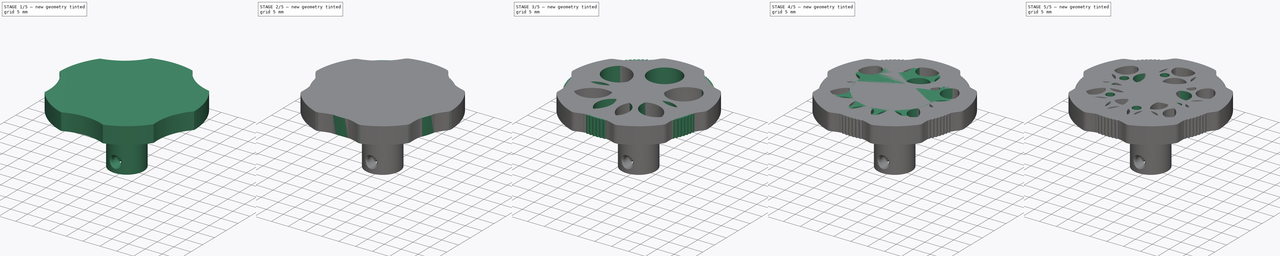
[diagram: build sequence overview — one tinted view per stage of 5, left to right]
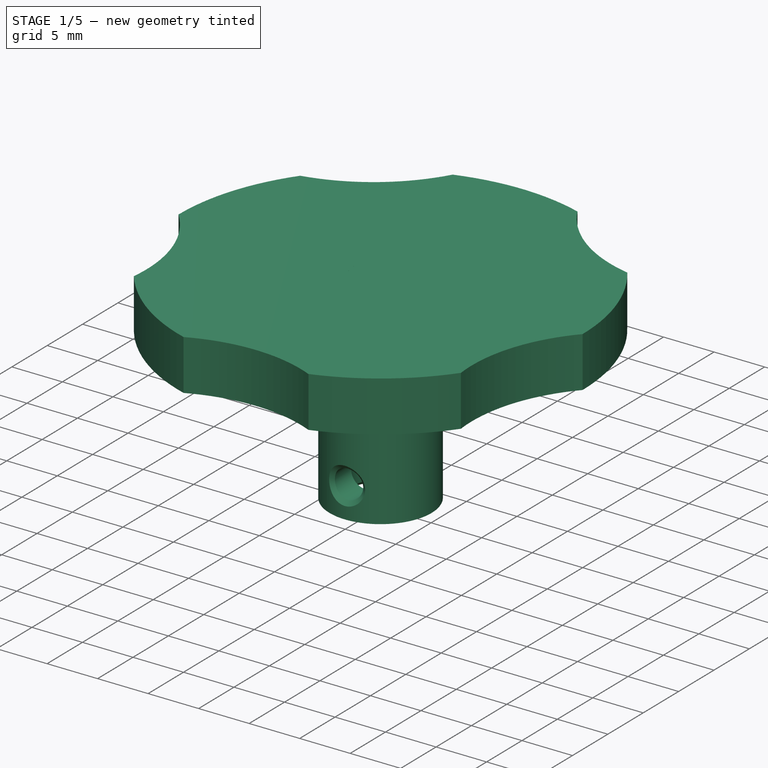
[diagram: stage 1 of 5 — iso view after this stage's code; geometry added in this stage tinted green]
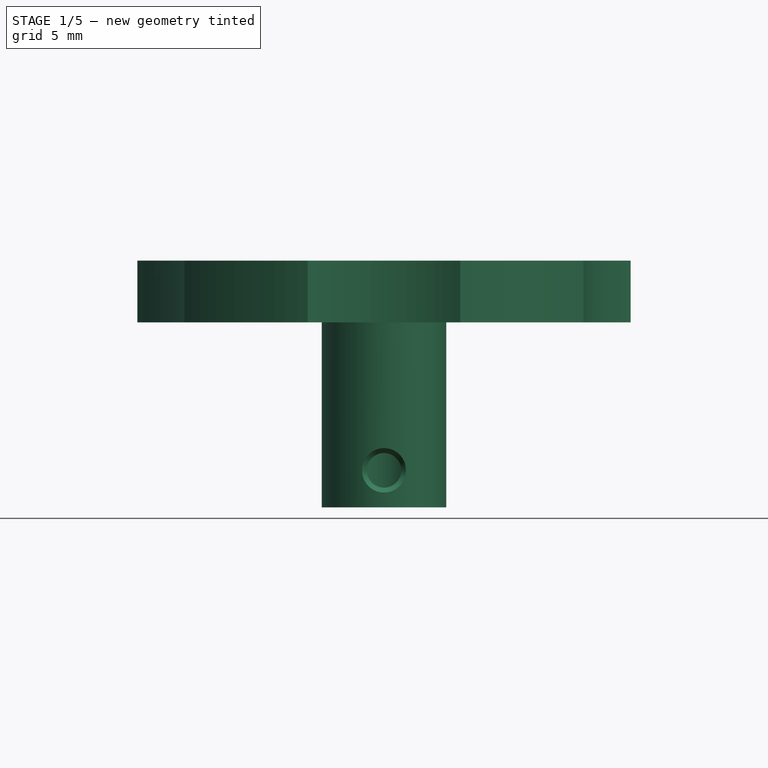
[diagram: stage 1 of 5 — front view after this stage's code; geometry added in this stage tinted green]
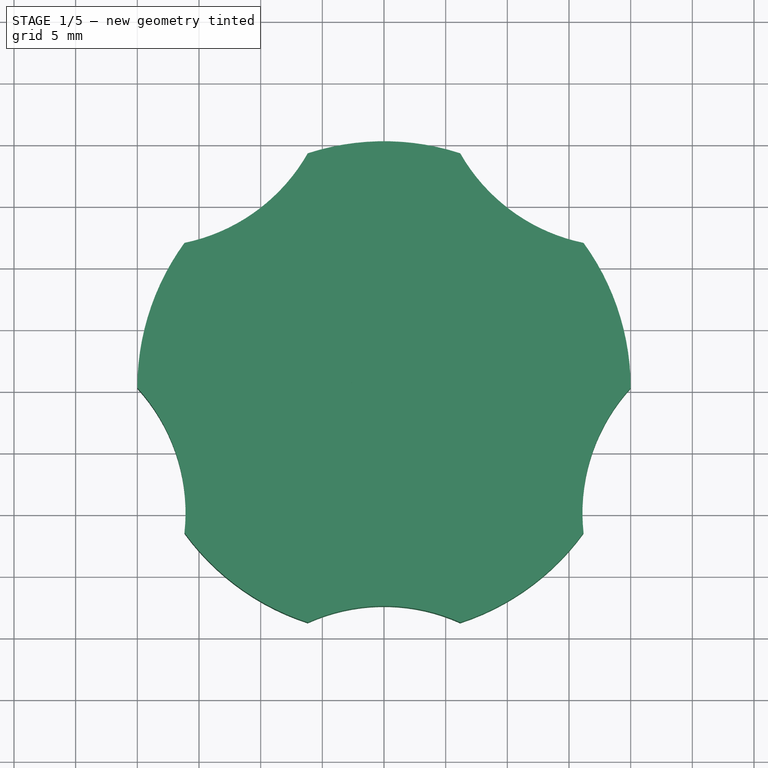
[diagram: stage 1 of 5 — top view after this stage's code; geometry added in this stage tinted green]
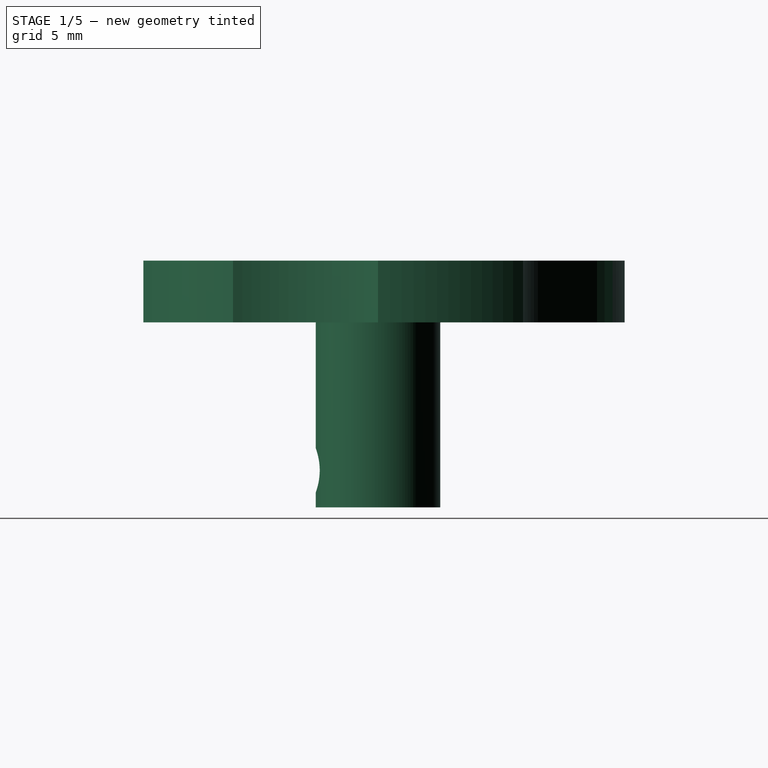
[diagram: stage 1 of 5 — right view after this stage's code; geometry added in this stage tinted green]
FCSTD DOCUMENT  (FreeCAD 0.16R6712 (Git))
Label: ExtruderKnob
License: All rights reserved
LicenseURL: http://en.wikipedia.org/wiki/All_rights_reserved
objects: Sketcher::SketchObject×11, PartDesign::Pad×6, PartDesign::PolarPattern×6, App::DocumentObjectGroup×6, PartDesign::Pocket×5, Part::FeaturePython×5, Part::MultiFuse×3, PartDesign::Chamfer×1, PartDesign::Fillet×1
note: 49 computed .brp shape members not serialized (recipe doc carries the construction recipe); baked Part::Feature solids carry a one-line shape summary decoded from their .brp

FEATURE [Sketcher::SketchObject] Sketch  label="StalkBase"
  sketch-geometry (5):
    g0: ArcOfCircle CenterX=0 CenterY=0 CenterZ=0 NormalX=0 NormalY=0 NormalZ=1 Radius=2.65 StartAngle=5.33678 EndAngle=10.3712
    g1: LineSegment StartX=-1.54919 StartY=-2.15 StartZ=0 EndX=1.54919 EndY=-2.15 EndZ=0
    g2: ArcOfCircle [constr] CenterX=0 CenterY=0 CenterZ=0 NormalX=0 NormalY=0 NormalZ=1 Radius=2.65 StartAngle=4.088 EndAngle=5.33678
    g3: GeomPoint [constr] X=0 Y=-2.65 Z=0
    g4: Circle CenterX=0 CenterY=0 CenterZ=0 NormalX=0 NormalY=0 NormalZ=1 Radius=5.05
  constraints (14):
    c: Coincident(g0,g-1)
    c: Radius(g0) = 2.65
    c: Symmetric(g0,g0,g-2)
    c: Coincident(g1,g0)
    c: Coincident(g1,g0)
    c: Horizontal(g1)
    c: Coincident(g2,g-1)
    c: Coincident(g2,g0)
    c: Coincident(g2,g0)
    c: PointOnObject(g3,g2)
    c: PointOnObject(g3,g-2)
    c: DistanceY(g3,g0) = 0.5
    c: Coincident(g4,g-1)
    c: Radius(g4) = 5.05
FEATURE [PartDesign::Pad] Pad
  Length = 20
  Length2 = 100
  Sketch = -> Sketch
  Type = 0
FEATURE [Sketcher::SketchObject] Sketch001  label="StalkHole"
  ExternalGeometry = -> [Pad]
  Placement = pos=(0,-2.15,0) rot=(0,0.707107,0.707107;3.14159rad)
  Support = -> Pad [Face3]
  sketch-geometry (3):
    g0: LineSegment [constr] StartX=-1.54919 StartY=20 StartZ=0 EndX=-1.54919 EndY=0 EndZ=0
    g1: LineSegment [constr] StartX=1.54919 StartY=20 StartZ=0 EndX=1.54919 EndY=0 EndZ=0
    g2: Circle CenterX=0 CenterY=3 CenterZ=0 NormalX=0 NormalY=0 NormalZ=1 Radius=1.4
  constraints (9):
    c: Coincident(g0,g-3)
    c: PointOnObject(g0,g-1)
    c: Vertical(g0)
    c: Coincident(g1,g-3)
    c: PointOnObject(g1,g-1)
    c: Vertical(g1)
    c: PointOnObject(g2,g-2)
    c: Radius(g2) = 1.4
    c: DistanceY(g-1,g2) = 3
FEATURE [PartDesign::Pocket] Pocket
  Length = 5
  Sketch = -> Sketch001
  Type = 2
FEATURE [PartDesign::Chamfer] Chamfer001  label="StalkChamf"
  Base = -> Pocket [Edge4,Edge5,Edge7,Edge6]
  Size = 0.4
FEATURE [App::DocumentObjectGroup] Group003  label="V2"
  Group = -> [Group004,Fusion001]
FEATURE [PartDesign::Pad] Pad006
  Length = 5
  Length2 = 100
  Placement = pos=(0,0,15) rot=(0,0,1;0rad)
  Sketch = -> Sketch002
  Type = 0
FEATURE [Part::FeaturePython] Clone006  label="Clone of StalkChamf"  # Draft clone (typed FeaturePython)
  Objects = -> [Chamfer001]
  Scale = (1,1,1)
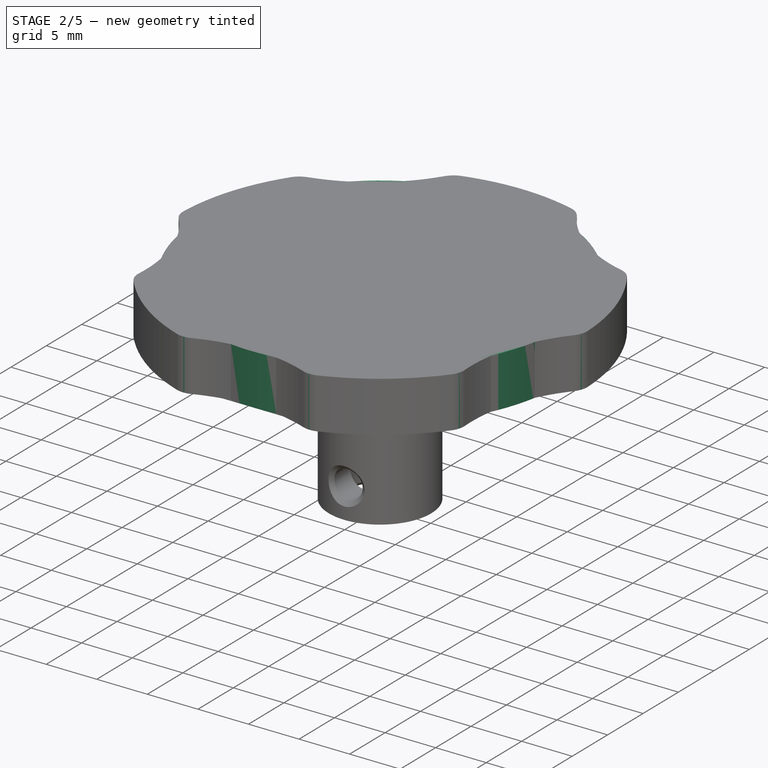
[diagram: stage 2 of 5 — iso view after this stage's code; geometry added in this stage tinted green]
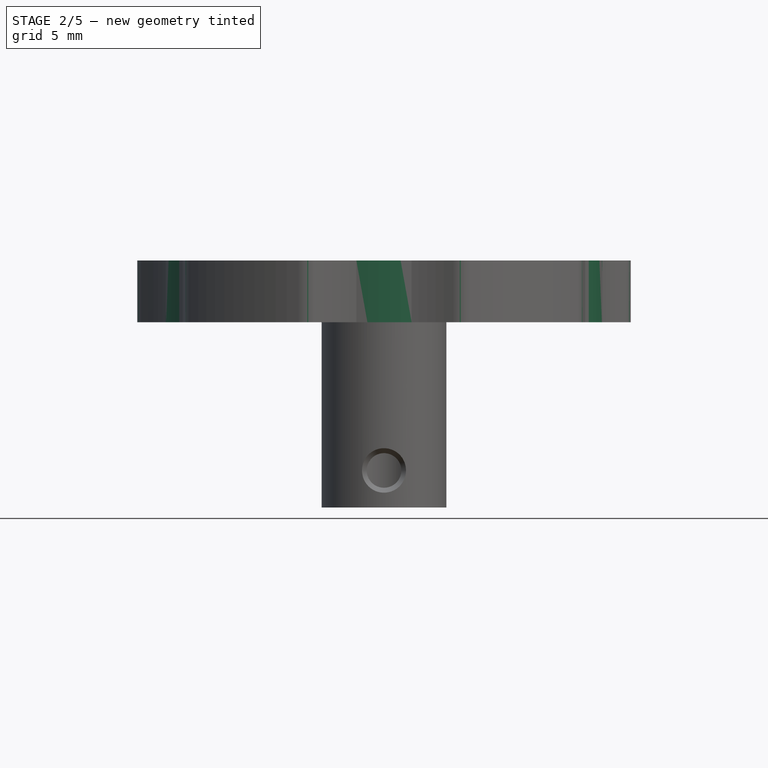
[diagram: stage 2 of 5 — front view after this stage's code; geometry added in this stage tinted green]
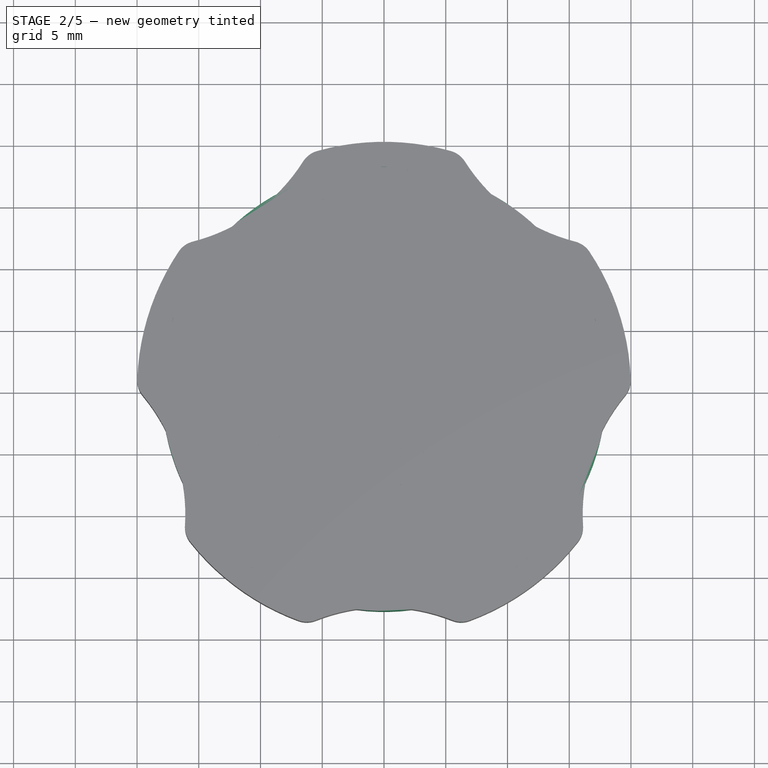
[diagram: stage 2 of 5 — top view after this stage's code; geometry added in this stage tinted green]
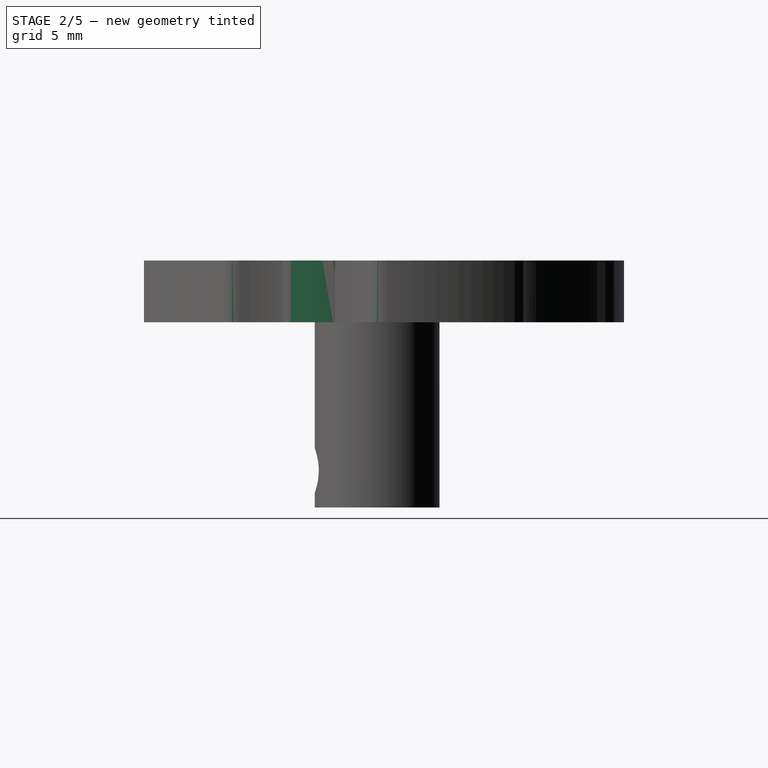
[diagram: stage 2 of 5 — right view after this stage's code; geometry added in this stage tinted green]
FEATURE [Sketcher::SketchObject] Sketch009  label="WinchDisc2"
  Placement = pos=(0,0,15) rot=(0,0,1;0rad)
  sketch-geometry (1):
    g0: Circle CenterX=0 CenterY=0 CenterZ=0 NormalX=0 NormalY=0 NormalZ=1 Radius=18
  constraints (2):
    c: Coincident(g0,g-1)
    c: Radius(g0) = 18
FEATURE [PartDesign::Pad] Pad004
  Length = 5
  Length2 = 100
  Placement = pos=(0,0,15) rot=(0,0,1;0rad)
  Sketch = -> Sketch009
  Type = 0
FEATURE [Part::FeaturePython] Clone005  label="Clone2 of StalkChamf"  # Draft clone (typed FeaturePython)
  Objects = -> [Chamfer001]
  Scale = (1,1,1)
FEATURE [Sketcher::SketchObject] Sketch012  label="Holes3"
  Placement = pos=(0,0,20) rot=(0,0,1;0rad)
  Support = -> Pad006 [Face12]
  sketch-geometry (1):
    g0: Circle CenterX=0 CenterY=12 CenterZ=0 NormalX=0 NormalY=0 NormalZ=1 Radius=6
  constraints (3):
    c: PointOnObject(g0,g-2)
    c: Radius(g0) = 6
    c: DistanceY(g-1,g0) = 12
FEATURE [PartDesign::Pocket] Pocket005
  Length = 5
  Placement = pos=(0,0,15) rot=(0,0,1;0rad)
  Sketch = -> Sketch012
  Type = 2
FEATURE [App::DocumentObjectGroup] Group008  label="V3"
  Group = -> [Pad006,Pocket005]
FEATURE [PartDesign::PolarPattern] PolarPattern005
  Angle = 360
  Axis = -> Sketch012 [N_Axis]
  Occurrences = 5
  Originals = -> [Pocket005]
  Placement = pos=(0,0,15) rot=(0,0,1;0rad)
FEATURE [PartDesign::Fillet] Fillet
  Base = -> PolarPattern005 [Edge1,Edge5,Edge35,Edge37,Edge2,Edge8,Edge36,Edge38,Edge40,Edge39]
  Placement = pos=(0,0,15) rot=(0,0,1;0rad)
  Radius = 2
FEATURE [Part::MultiFuse] Fusion002
  Shapes = -> [Clone006,Fillet]
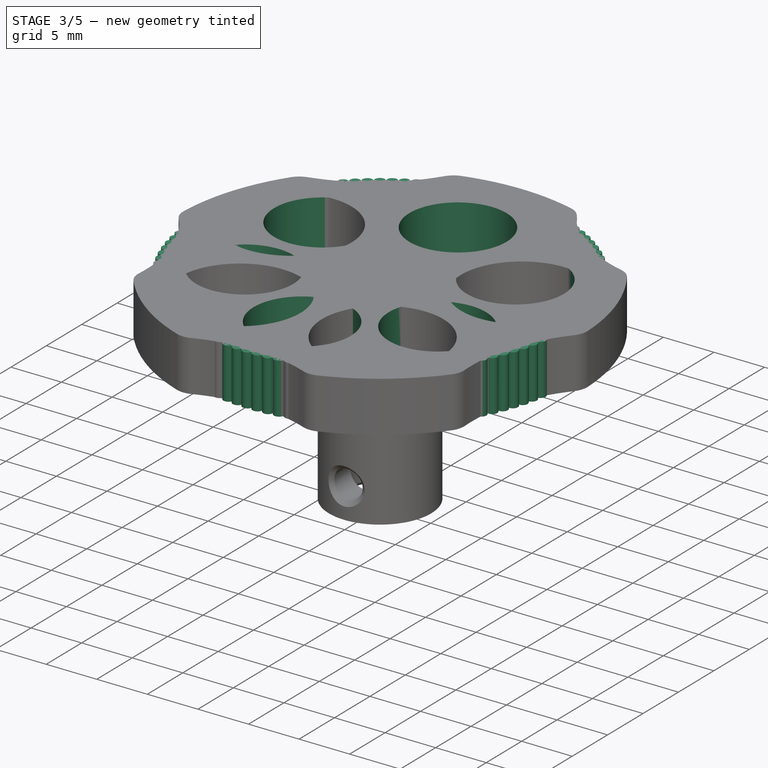
[diagram: stage 3 of 5 — iso view after this stage's code; geometry added in this stage tinted green]
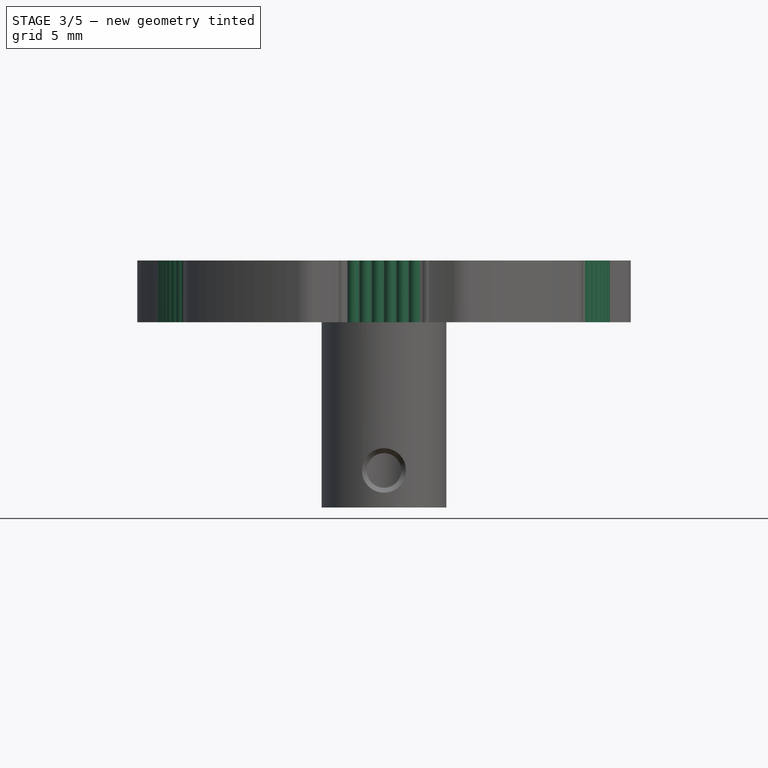
[diagram: stage 3 of 5 — front view after this stage's code; geometry added in this stage tinted green]
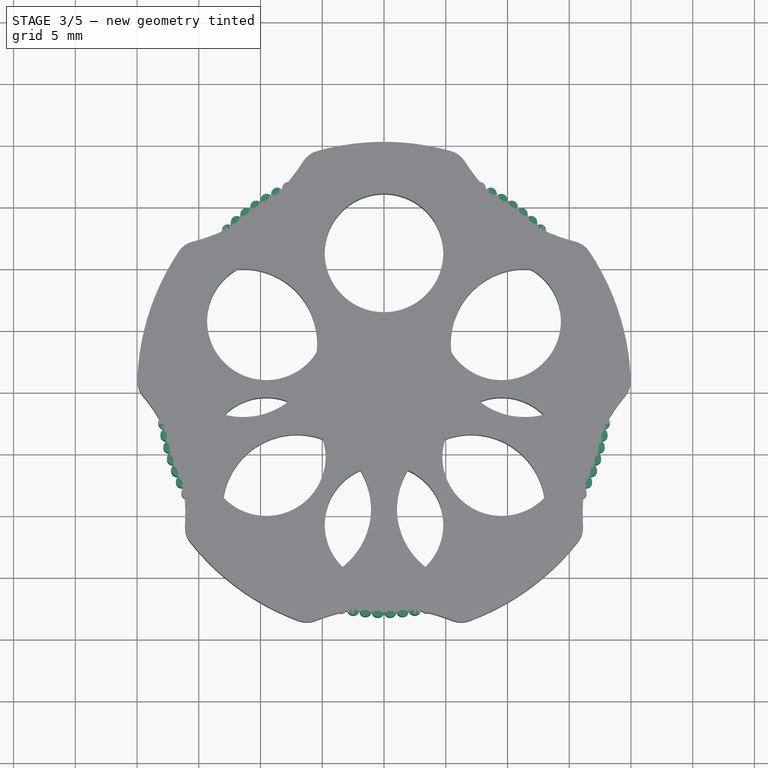
[diagram: stage 3 of 5 — top view after this stage's code; geometry added in this stage tinted green]
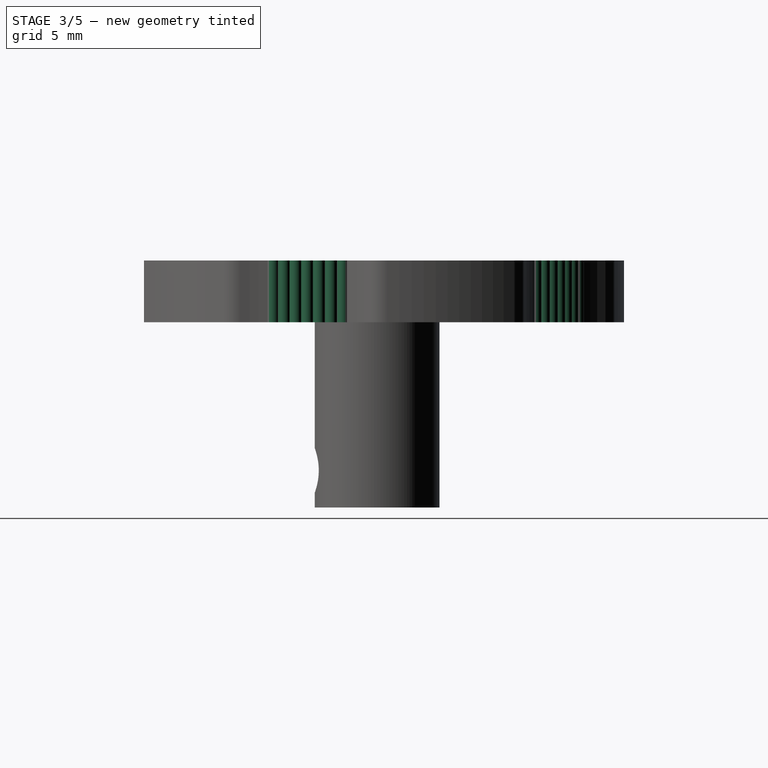
[diagram: stage 3 of 5 — right view after this stage's code; geometry added in this stage tinted green]
FEATURE [Sketcher::SketchObject] Sketch010  label="Holes2"
  Placement = pos=(0,0,20) rot=(0,0,1;0rad)
  Support = -> Pad004 [Face3]
  sketch-geometry (1):
    g0: Circle CenterX=0 CenterY=11 CenterZ=0 NormalX=0 NormalY=0 NormalZ=1 Radius=4.8
  constraints (3):
    c: PointOnObject(g0,g-2)
    c: Radius(g0) = 4.8
    c: DistanceY(g-1,g0) = 11
FEATURE [PartDesign::Pocket] Pocket004
  Length = 5
  Placement = pos=(0,0,15) rot=(0,0,1;0rad)
  Sketch = -> Sketch010
  Type = 2
FEATURE [PartDesign::PolarPattern] PolarPattern003  label="HolesPolar"
  Angle = 360
  Axis = -> Sketch010 [N_Axis]
  Occurrences = 6
  Originals = -> [Pocket004]
  Placement = pos=(0,0,15) rot=(0,0,1;0rad)
FEATURE [Sketcher::SketchObject] Sketch011  label="Ribs001"
  Placement = pos=(0,0,20) rot=(0,0,1;0rad)
  Support = -> PolarPattern003 [Face3]
  sketch-geometry (1):
    g0: Circle CenterX=0 CenterY=18 CenterZ=0 NormalX=0 NormalY=0 NormalZ=1 Radius=0.5
  constraints (3):
    c: PointOnObject(g0,g-2)
    c: Radius(g0) = 0.5
    c: DistanceY(g-1,g0) = 18
FEATURE [PartDesign::Pad] Pad005
  Length = 5
  Length2 = 100
  Placement = pos=(0,0,15) rot=(0,0,1;0rad)
  Reversed = true
  Sketch = -> Sketch011
  Type = 0
FEATURE [PartDesign::PolarPattern] PolarPattern004  label="RibsPolar2"
  Angle = 360
  Axis = -> Sketch011 [N_Axis]
  Occurrences = 113
  Originals = -> [Pad005]
  Placement = pos=(0,0,15) rot=(0,0,1;0rad)
FEATURE [Part::FeaturePython] Clone002  label="Clone of RibsPolar2"  # Draft clone (typed FeaturePython)
  Objects = -> [PolarPattern004]
  Placement = pos=(0,0,15) rot=(0,0,1;0rad)
  Scale = (1,1,1)
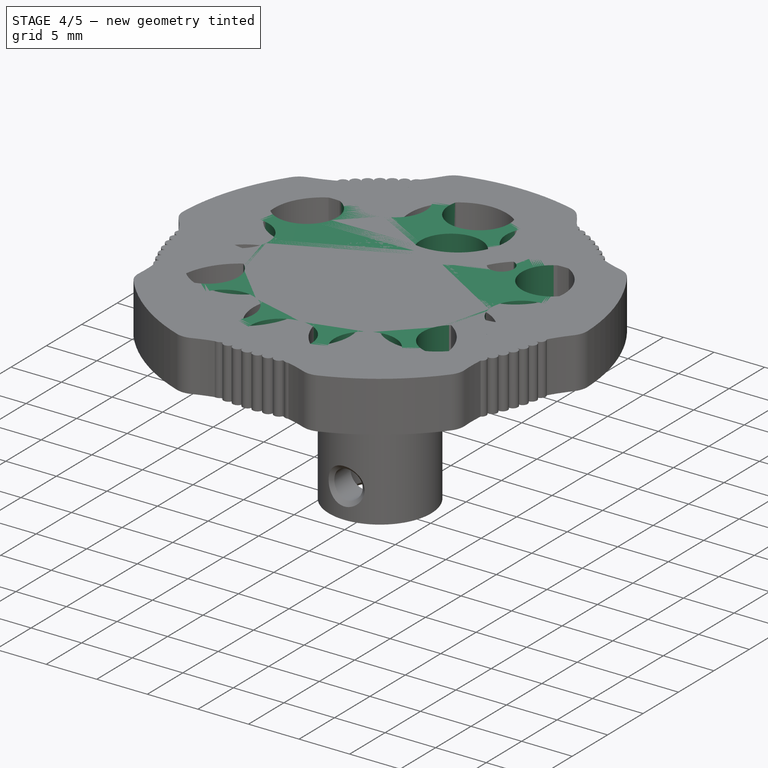
[diagram: stage 4 of 5 — iso view after this stage's code; geometry added in this stage tinted green]
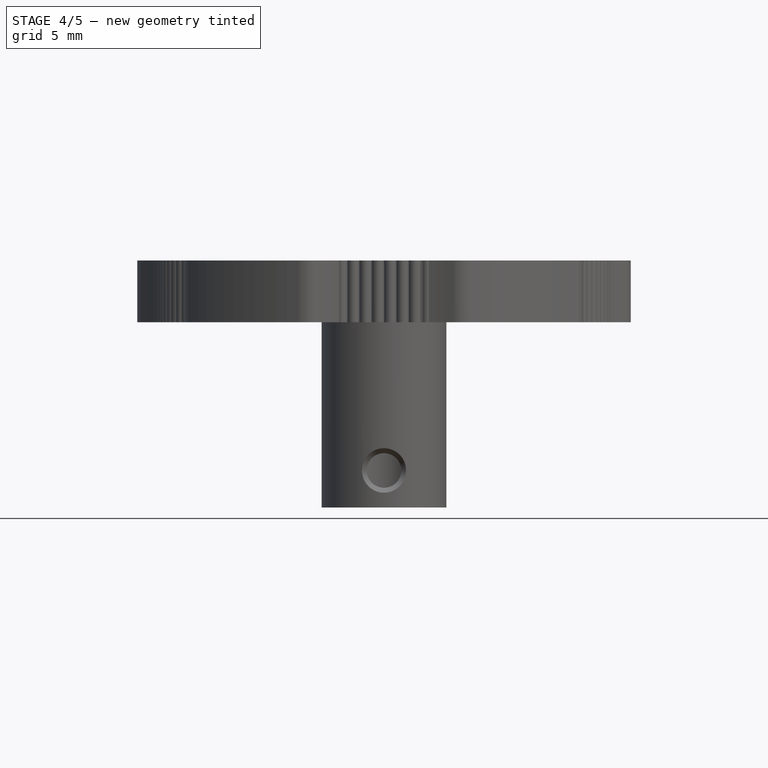
[diagram: stage 4 of 5 — front view after this stage's code; geometry added in this stage tinted green]
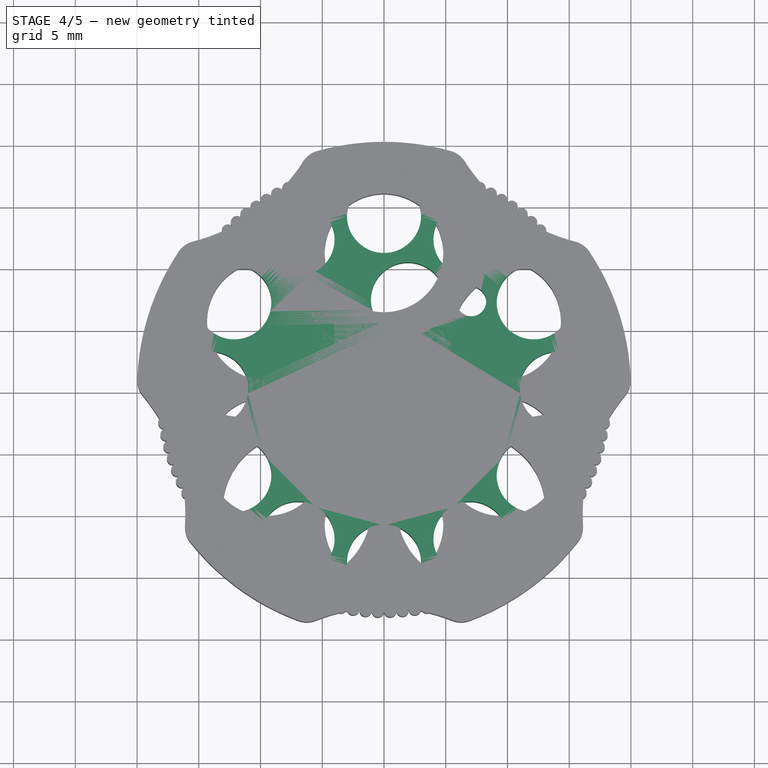
[diagram: stage 4 of 5 — top view after this stage's code; geometry added in this stage tinted green]
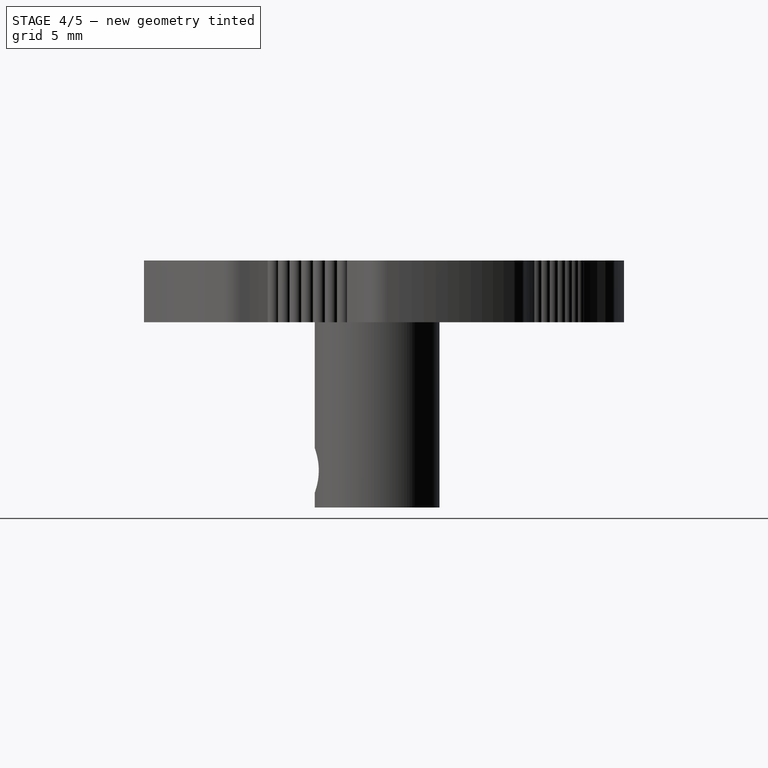
[diagram: stage 4 of 5 — right view after this stage's code; geometry added in this stage tinted green]
FEATURE [Sketcher::SketchObject] Sketch002  label="Disc3"
  Placement = pos=(0,0,15) rot=(0,0,1;0rad)
  sketch-geometry (29):
    g0: LineSegment [constr] StartX=19.0211 StartY=6.18034 StartZ=0 EndX=0 EndY=20 EndZ=0
    g1: LineSegment [constr] StartX=0 StartY=20 StartZ=0 EndX=-19.0211 EndY=6.18034 EndZ=0
    g2: LineSegment [constr] StartX=-19.0211 StartY=6.18034 StartZ=0 EndX=-11.7557 EndY=-16.1803 EndZ=0
    g3: LineSegment [constr] StartX=-11.7557 StartY=-16.1803 StartZ=0 EndX=11.7557 EndY=-16.1803 EndZ=0
    g4: LineSegment [constr] StartX=11.7557 StartY=-16.1803 StartZ=0 EndX=19.0211 EndY=6.18034 EndZ=0
    g5: Circle [constr] CenterX=0 CenterY=0 CenterZ=0 NormalX=0 NormalY=0 NormalZ=1 Radius=20
    g6: LineSegment [constr] StartX=6.18034 StartY=19.0211 StartZ=0 EndX=-16.1803 EndY=11.7557 EndZ=0
    g7: LineSegment [constr] StartX=-16.1803 StartY=11.7557 StartZ=0 EndX=-16.1803 EndY=-11.7557 EndZ=0
    g8: LineSegment [constr] StartX=-16.1803 StartY=-11.7557 StartZ=0 EndX=6.18034 EndY=-19.0211 EndZ=0
    g9: LineSegment [constr] StartX=6.18034 StartY=-19.0211 StartZ=0 EndX=20 EndY=0 EndZ=0
    g10: LineSegment [constr] StartX=20 StartY=0 StartZ=0 EndX=6.18034 EndY=19.0211 EndZ=0
    g11: Circle [constr] CenterX=0 CenterY=0 CenterZ=0 NormalX=0 NormalY=0 NormalZ=1 Radius=20
    g12: LineSegment [constr] StartX=16.1803 StartY=11.7557 StartZ=0 EndX=-6.18034 EndY=19.0211 EndZ=0
    g13: LineSegment [constr] StartX=-6.18034 StartY=19.0211 StartZ=0 EndX=-20 EndY=0 EndZ=0
    g14: LineSegment [constr] StartX=-20 StartY=0 StartZ=0 EndX=-6.18034 EndY=-19.0211 EndZ=0
    g15: LineSegment [constr] StartX=-6.18034 StartY=-19.0211 StartZ=0 EndX=16.1803 EndY=-11.7557 EndZ=0
    g16: LineSegment [constr] StartX=16.1803 StartY=-11.7557 StartZ=0 EndX=16.1803 EndY=11.7557 EndZ=0
    g17: Circle [constr] CenterX=0 CenterY=0 CenterZ=0 NormalX=0 NormalY=0 NormalZ=1 Radius=20
    g18: ArcOfCircle CenterX=0 CenterY=0 CenterZ=0 NormalX=0 NormalY=0 NormalZ=1 Radius=20 StartAngle=2.51327 EndAngle=3.14159
    g19: ArcOfCircle CenterX=0 CenterY=0 CenterZ=0 NormalX=0 NormalY=0 NormalZ=1 Radius=20 StartAngle=1.25664 EndAngle=1.88496
    g20: ArcOfCircle CenterX=0 CenterY=0 CenterZ=0 NormalX=0 NormalY=0 NormalZ=1 Radius=20 StartAngle=0 EndAngle=0.628319
    g21: ArcOfCircle CenterX=0 CenterY=0 CenterZ=0 NormalX=0 NormalY=0 NormalZ=1 Radius=20 StartAngle=5.02655 EndAngle=5.65487
    g22: ArcOfCircle CenterX=0 CenterY=0 CenterZ=0 NormalX=0 NormalY=0 NormalZ=1 Radius=20 StartAngle=3.76991 EndAngle=4.39823
    g23: ArcOfCircle CenterX=-19.214 CenterY=26.4457 CenterZ=0 NormalX=0 NormalY=0 NormalZ=1 Radius=15 StartAngle=4.91603 EndAngle=5.76538
    g24: Circle [constr] CenterX=0 CenterY=0 CenterZ=0 NormalX=0 NormalY=0 NormalZ=1 Radius=32.6887
    g25: ArcOfCircle CenterX=19.214 CenterY=26.4457 CenterZ=0 NormalX=0 NormalY=0 NormalZ=1 Radius=15 StartAngle=3.6594 EndAngle=4.50874
    g26: ArcOfCircle CenterX=31.0888 CenterY=-10.1014 CenterZ=0 NormalX=0 NormalY=0 NormalZ=1 Radius=15 StartAngle=2.40276 EndAngle=3.25211
    g27: ArcOfCircle CenterX=0 CenterY=-32.6887 CenterZ=0 NormalX=0 NormalY=0 NormalZ=1 Radius=15 StartAngle=1.14612 EndAngle=1.99547
    g28: ArcOfCircle CenterX=-31.0888 CenterY=-10.1014 CenterZ=0 NormalX=0 NormalY=0 NormalZ=1 Radius=15 StartAngle=6.17267 EndAngle=7.02202
  constraints (73):
    c: Coincident(g0,g1)
    c: Coincident(g1,g2)
    c: Coincident(g2,g3)
    c: Coincident(g3,g4)
    c: Coincident(g4,g0)
    c: Equal(g0, g1-g4) x4
    c: PointOnObject(g0,g5)
    c: PointOnObject(g1,g5)
    c: PointOnObject(g2,g5)
    c: PointOnObject(g3,g5)
    c: PointOnObject(g4,g5)
    c: Coincident(g5,g-1)
    c: Radius(g5) = 20
    c: Horizontal(g3)
    c: Coincident(g6,g7)
    c: Coincident(g7,g8)
    c: Coincident(g8,g9)
    c: Coincident(g9,g10)
    c: Coincident(g10,g6)
    c: Equal(g6, g7-g10) x4
    c: PointOnObject(g6,g11)
    c: PointOnObject(g7,g11)
    c: PointOnObject(g8,g11)
    c: PointOnObject(g9,g11)
    c: PointOnObject(g10,g11)
    c: Coincident(g11,g-1)
    c: Vertical(g7)
    c: Equal(g11,g5)
    c: Coincident(g12,g13)
    c: Coincident(g13,g14)
    c: Coincident(g14,g15)
    c: Coincident(g15,g16)
    c: Coincident(g16,g12)
    c: Equal(g12, g13-g16) x4
    c: PointOnObject(g12,g17)
    c: PointOnObject(g13,g17)
    c: PointOnObject(g14,g17)
    c: PointOnObject(g15,g17)
    c: PointOnObject(g16,g17)
    c: Coincident(g17,g-1)
    c: Vertical(g16)
    c: Coincident(g18,g-1)
    c: Coincident(g18,g13)
    c: Coincident(g6,g18)
    c: Coincident(g19,g-1)
    c: Coincident(g19,g12)
    c: Coincident(g19,g6)
    c: Coincident(g20,g-1)
    c: Coincident(g20,g12)
    c: Coincident(g20,g9)
    c: Coincident(g21,g-1)
    c: Coincident(g21,g15)
    c: Coincident(g21,g8)
    c: Coincident(g22,g-1)
    c: Coincident(g22,g14)
    c: Coincident(g22,g7)
    c: Coincident(g23,g6)
    c: Coincident(g23,g12)
    c: Radius(g23) = 15
    c: Coincident(g24,g-1)
    c: PointOnObject(g23,g24)
    c: Coincident(g25,g6)
    c: Coincident(g25,g12)
    c: Equal(g23,g25)
    c: Coincident(g26,g9)
    c: Coincident(g26,g15)
    c: Coincident(g27,g8)
    c: Coincident(g27,g14)
    c: Coincident(g28,g7)
    c: Coincident(g28,g13)
    c: Equal(g23,g26)
    c: Equal(g23,g27)
    c: Equal(g23,g28)
FEATURE [Sketcher::SketchObject] Sketch003  label="Disc"
  Placement = pos=(0,0,15) rot=(0,0,1;0rad)
  sketch-geometry (1):
    g0: Circle CenterX=0 CenterY=0 CenterZ=0 NormalX=0 NormalY=0 NormalZ=1 Radius=18
  constraints (2):
    c: Coincident(g0,g-1)
    c: Radius(g0) = 18
FEATURE [PartDesign::Pad] Pad001
  Length = 5
  Length2 = 100
  Placement = pos=(0,0,15) rot=(0,0,1;0rad)
  Sketch = -> Sketch003
  Type = 0
FEATURE [Sketcher::SketchObject] Sketch005  label="OuterHoles"
  Placement = pos=(0,0,20) rot=(0,0,1;0rad)
  Support = -> Pad001 [Face3]
  sketch-geometry (1):
    g0: Circle CenterX=0 CenterY=14 CenterZ=0 NormalX=0 NormalY=0 NormalZ=1 Radius=3
  constraints (3):
    c: PointOnObject(g0,g-2)
    c: Radius(g0) = 3
    c: DistanceY(g-1,g0) = 14
FEATURE [PartDesign::Pocket] Pocket001
  Length = 5
  Placement = pos=(0,0,15) rot=(0,0,1;0rad)
  Sketch = -> Sketch005
  Type = 2
FEATURE [PartDesign::PolarPattern] PolarPattern  label="OuterHolesPolar"
  Angle = 360
  Axis = -> Sketch005 [N_Axis]
  Occurrences = 12
  Originals = -> [Pocket001]
  Placement = pos=(0,0,15) rot=(0,0,1;0rad)
FEATURE [Sketcher::SketchObject] Sketch006  label="InnerHoles"
  Placement = pos=(0,0,20) rot=(0,0,1;0rad)
  Support = -> PolarPattern [Face3]
  sketch-geometry (4):
    g0: Circle CenterX=1.94114 CenterY=7.24444 CenterZ=0 NormalX=0 NormalY=0 NormalZ=1 Radius=3
    g1: LineSegment [constr] StartX=0 StartY=0 StartZ=0 EndX=1.94114 EndY=7.24444 EndZ=0
    g2: LineSegment [constr] StartX=0 StartY=0 StartZ=0 EndX=7.07107 EndY=7.07107 EndZ=0
    g3: Circle CenterX=7.07107 CenterY=7.07107 CenterZ=0 NormalX=0 NormalY=0 NormalZ=1 Radius=1.2
  constraints (10):
    c: Radius(g0) = 3
    c: Coincident(g1,g-1)
    c: Distance(g1) = 7.5
    c: Angle(g1,g-2) = 0.261799
    c: Coincident(g0,g1)
    c: Coincident(g2,g-1)
    c: Angle(g2,g-2) = 0.785398
    c: Distance(g2) = 10
    c: Coincident(g3,g2)
    c: Radius(g3) = 1.2
FEATURE [PartDesign::Pocket] Pocket002
  Length = 5
  Placement = pos=(0,0,15) rot=(0,0,1;0rad)
  Sketch = -> Sketch006
  Type = 2
FEATURE [App::DocumentObjectGroup] Group006  label="Stalk"
  Group = -> [Pad,Pocket,Chamfer001]
FEATURE [Part::FeaturePython] Clone004  label="Clone1 of StalkChamf"  # Draft clone (typed FeaturePython)
  Objects = -> [Chamfer001]
  Scale = (1,1,1)
FEATURE [App::DocumentObjectGroup] Group  label="V1"
  Group = -> [Group005,Fusion]
FEATURE [Part::MultiFuse] Fusion001
  Shapes = -> [Clone002,Clone005]
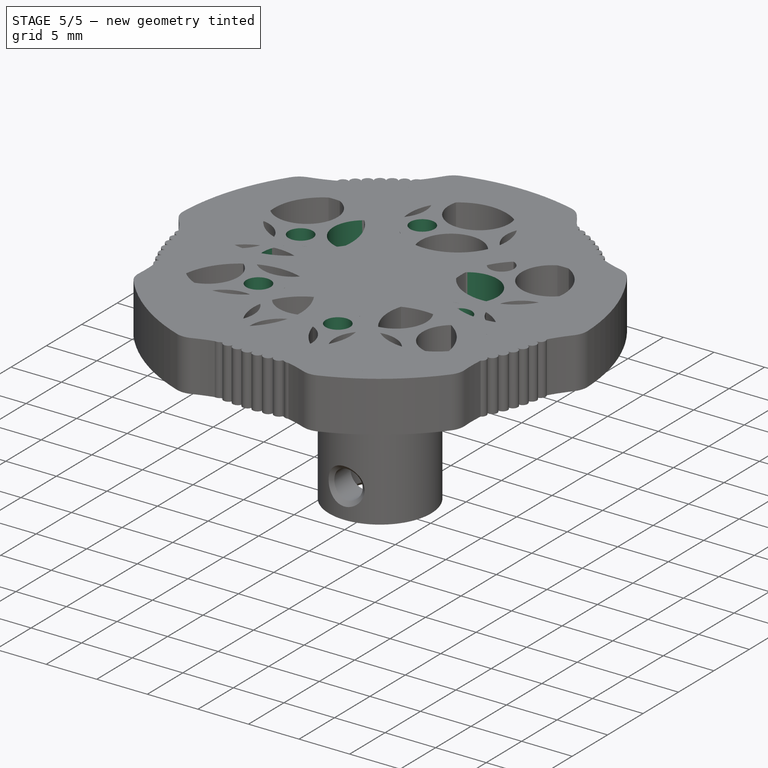
[diagram: stage 5 of 5 — iso view after this stage's code; geometry added in this stage tinted green]
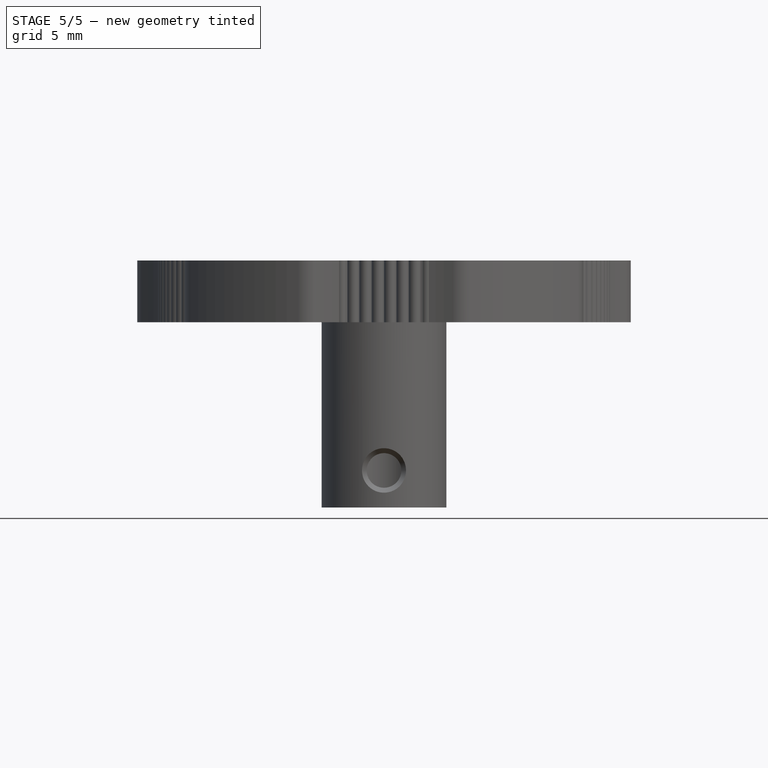
[diagram: stage 5 of 5 — front view after this stage's code; geometry added in this stage tinted green]
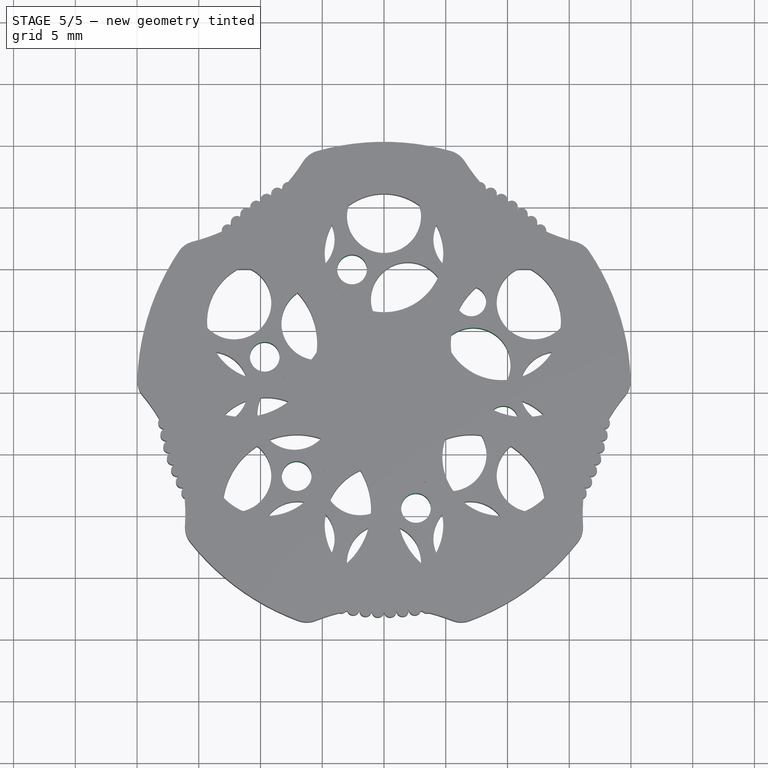
[diagram: stage 5 of 5 — top view after this stage's code; geometry added in this stage tinted green]
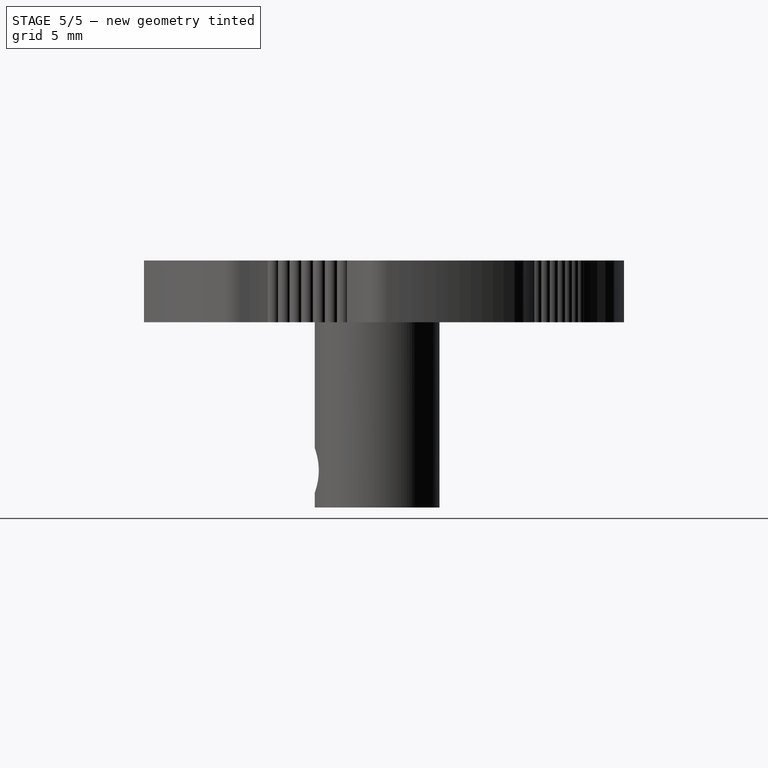
[diagram: stage 5 of 5 — right view after this stage's code; geometry added in this stage tinted green]
FEATURE [PartDesign::PolarPattern] PolarPattern001  label="InnerHolesPolar"
  Angle = 360
  Axis = -> Sketch006 [N_Axis]
  Occurrences = 6
  Originals = -> [Pocket002]
  Placement = pos=(0,0,15) rot=(0,0,1;0rad)
FEATURE [Sketcher::SketchObject] Sketch004  label="Ribs"
  Placement = pos=(0,0,20) rot=(0,0,1;0rad)
  Support = -> PolarPattern001 [Face3]
  sketch-geometry (1):
    g0: Circle CenterX=0 CenterY=18 CenterZ=0 NormalX=0 NormalY=0 NormalZ=1 Radius=0.5
  constraints (3):
    c: PointOnObject(g0,g-2)
    c: Radius(g0) = 0.5
    c: DistanceY(g-1,g0) = 18
FEATURE [PartDesign::Pad] Pad002
  Length = 5
  Length2 = 100
  Placement = pos=(0,0,15) rot=(0,0,1;0rad)
  Reversed = true
  Sketch = -> Sketch004
  Type = 0
FEATURE [PartDesign::PolarPattern] PolarPattern002  label="RibsPolar"
  Angle = 360
  Axis = -> Sketch004 [N_Axis]
  Occurrences = 113
  Originals = -> [Pad002]
  Placement = pos=(0,0,15) rot=(0,0,1;0rad)
FEATURE [App::DocumentObjectGroup] Group004  label="Winch2"
  Group = -> [Pad004,Pocket004,PolarPattern003,Pad005,PolarPattern004]
FEATURE [App::DocumentObjectGroup] Group005  label="Winch"
  Group = -> [Pad001,Pocket001,PolarPattern,Pocket002,PolarPattern001,Pad002,PolarPattern002]
FEATURE [Part::FeaturePython] Clone  label="Clone of winch"  # Draft clone (typed FeaturePython)
  Objects = -> [PolarPattern002]
  Placement = pos=(0,0,15) rot=(0,0,1;0rad)
  Scale = (1,1,1)
FEATURE [Part::MultiFuse] Fusion
  Shapes = -> [Clone,Clone004]
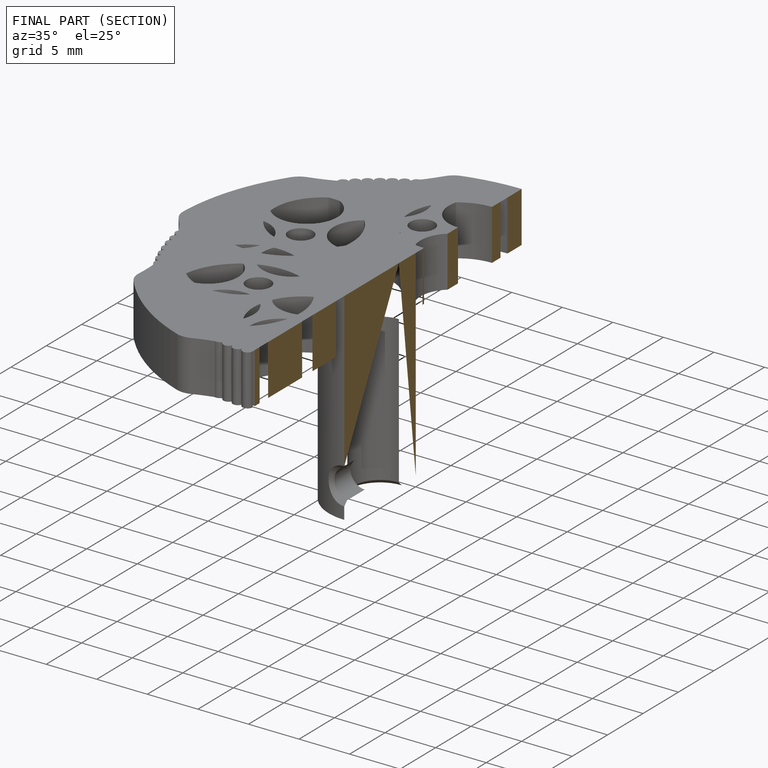
[diagram: finished part — half-section view (interior)]
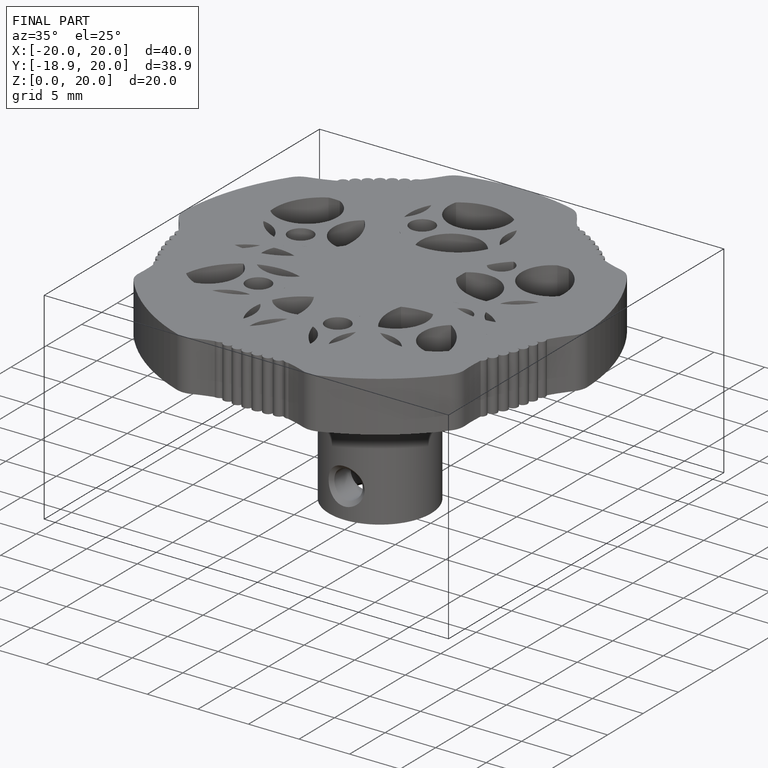
[diagram: finished part — iso view with bounding-box wireframe]
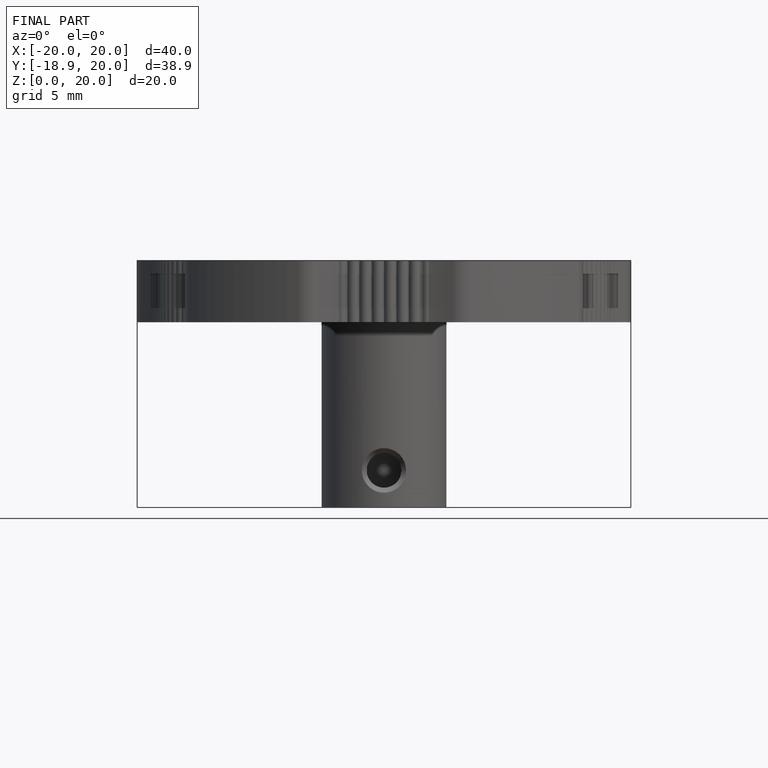
[diagram: finished part — front view with bounding-box wireframe]
